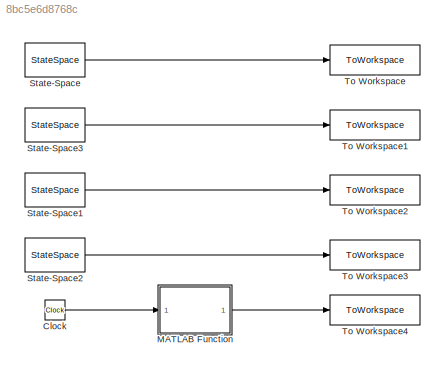
MODEL slx_8bc5e6d8768c
KIND model
CONFIG AbsTol = auto
CONFIG EnableMultiTasking = off
CONFIG FixedStep = auto
CONFIG MaxStep = auto
CONFIG MinStep = auto
CONFIG RelTol = 1e-3
CONFIG SampleTimeConstraint = Unconstrained
CONFIG SolverName = VariableStepAuto
CONFIG StartTime = 0.0
CONFIG StopTime = 3
BLOCK [Clock] Clock
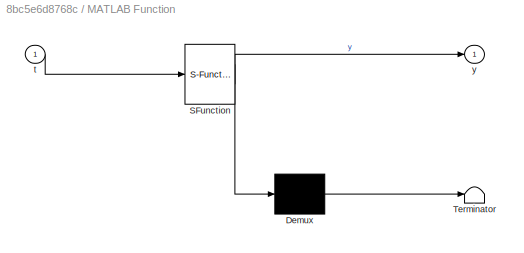
BLOCK [SubSystem] MATLAB Function
  ErrorFcn = Stateflow.Translate.translate
  PermitHierarchicalResolution = ExplicitOnly
  Ports = [1, 1]
  RequestExecContextInheritance = off
  SFBlockType = MATLAB Function
  TreatAsAtomicUnit = on
BLOCK [Demux] MATLAB Function/ Demux 
  Outputs = 1
  Ports = [1, 1]
BLOCK [S-Function] MATLAB Function/ SFunction 
  EnableBusSupport = on
  FunctionName = sf_sfun
  PortCounts = [1 2]
  Ports = [1, 2]
  SFcnIsStateOwnerBlock = off
  SFunctionDeploymentMode = off
  Tag = Stateflow S-Function 2
BLOCK [Terminator] MATLAB Function/ Terminator 
BLOCK [Inport] MATLAB Function/t
BLOCK [Outport] MATLAB Function/y
BLOCK [StateSpace] State-Space
  A = A
  B = B
  C = [1, 0, 0]
  ContinuousStateAttributes = "x1"
  D = D
  InitialCondition = x00
  Ports = [1, 1]
BLOCK [StateSpace] State-Space1
  A = A
  B = B
  C = [0, 0,1]
  ContinuousStateAttributes = "x3"
  D = D
  InitialCondition = x00
  Ports = [1, 1]
BLOCK [StateSpace] State-Space2
  A = A
  B = B
  C = C
  ContinuousStateAttributes = "y"
  D = D
  InitialCondition = x00
  ParameterTunability = Unconstrained
  Ports = [1, 1]
BLOCK [StateSpace] State-Space3
  A = A
  B = B
  C = [0, 1, 0]
  ContinuousStateAttributes = "x2"
  D = D
  InitialCondition = x00
  Ports = [1, 1]
BLOCK [ToWorkspace] To Workspace
  FixptAsFi = on
  MaxDataPoints = inf
  Ports = [1]
  SampleTime = -1
  SaveFormat = Timeseries
  VariableName = x1
BLOCK [ToWorkspace] To Workspace1
  FixptAsFi = on
  MaxDataPoints = inf
  Ports = [1]
  SampleTime = -1
  SaveFormat = Timeseries
  VariableName = x2
BLOCK [ToWorkspace] To Workspace2
  FixptAsFi = on
  MaxDataPoints = inf
  Ports = [1]
  SampleTime = -1
  SaveFormat = Timeseries
  VariableName = x3
BLOCK [ToWorkspace] To Workspace3
  FixptAsFi = on
  MaxDataPoints = inf
  Ports = [1]
  SampleTime = -1
  SaveFormat = Timeseries
  VariableName = y
BLOCK [ToWorkspace] To Workspace4
  FixptAsFi = on
  MaxDataPoints = inf
  Ports = [1]
  SampleTime = -1
  SaveFormat = Timeseries
  VariableName = y_check
LINE Clock:1 -> MATLAB Function:1
LINE MATLAB Function:1 -> To Workspace4:1
LINE State-Space1:1 -> To Workspace2:1
LINE State-Space2:1 -> To Workspace3:1
LINE State-Space3:1 -> To Workspace1:1
LINE State-Space:1 -> To Workspace:1
CHART MATLAB Function states=1 transitions=1
  STATE_LABEL 'eML_blk_kernel()'
  STATE_LABEL 'SCRIPT:\nfunction y = y_check(t)\n\ny = exp(-3*t)*(-3*cos(2*t) - 2*sin(2*t));\n'
CHART  states=0 transitions=0
